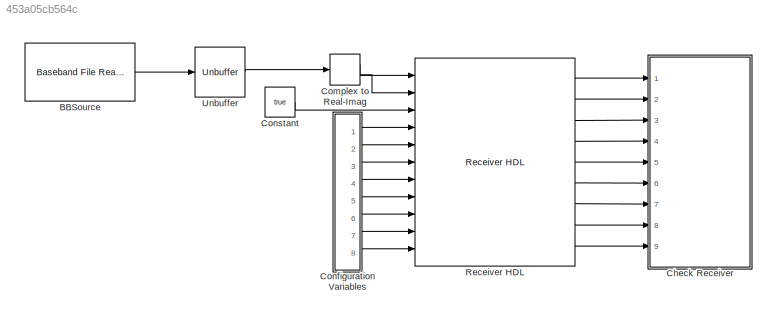
MODEL slx_453a05cb564c
KIND model
CONFIG AbsTol = auto
CONFIG EnableMultiTasking = off
CONFIG FixedStep = auto
CONFIG InitFcn = modelSettings\n
CONFIG MaxStep = auto
CONFIG MinStep = auto
CONFIG RelTol = 1e-3
CONFIG SampleTimeConstraint = Unconstrained
CONFIG Solver = FixedStepDiscrete
CONFIG SolverName = FixedStepDiscrete
CONFIG StartTime = 0.0
CONFIG StopTime = 10.0
BLOCK [Reference] BBSource  REF=commsource2/Baseband File Reader
  Ports = [0, 1]
  SourceBlock = commsource2/Baseband File Reader
  SourceProductBaseCode = CM
  SourceProductName = Communications System Toolbox
  SourceType = Baseband File Reader
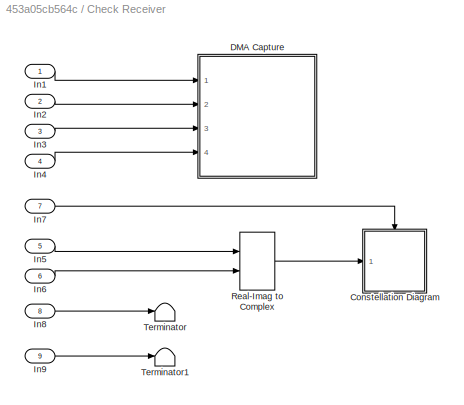
BLOCK [SubSystem] Check Receiver
  Ports = [9]
  RequestExecContextInheritance = off
  Variant = off
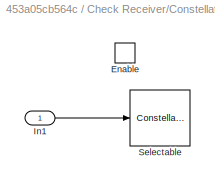
BLOCK [SubSystem] Check Receiver/Constellation Diagram
  Ports = [1, 0, 1]
  RequestExecContextInheritance = off
  Variant = off
BLOCK [EnablePort] Check Receiver/Constellation Diagram/Enable
  Ports = []
BLOCK [Inport] Check Receiver/Constellation Diagram/In1
  IconDisplay = Port number
BLOCK [ConstellationDiagram] Check Receiver/Constellation Diagram/Selectable
  Ports = [1]
  ScopeSpecificationString = comm.scopes.ConstellationDiagramBlockCfg('CurrentConfiguration', extmgr.ConfigurationSet(extmgr.Configuration('Core','General UI',true),extmgr.Configuration('Core','Source UI',true),extmgr.Configuration('Sources','WiredSimulink',true),extmgr.Configuration('Sources','File',false),extmgr.Configuration('Sources','Workspace',false),extmgr.Configuration('Sources','Streaming',false),extmgr.Configuration...<+2463ch>
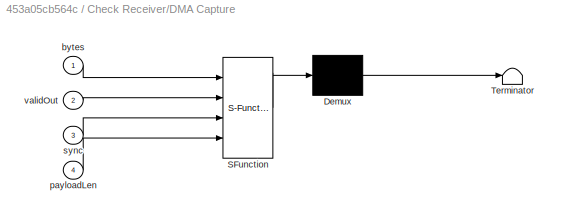
BLOCK [SubSystem] Check Receiver/DMA Capture
  ErrorFcn = Stateflow.Translate.translate
  PermitHierarchicalResolution = ExplicitOnly
  Ports = [4]
  RequestExecContextInheritance = off
  SFBlockType = MATLAB Function
  TreatAsAtomicUnit = on
  Variant = off
BLOCK [Demux] Check Receiver/DMA Capture/ Demux 
  Outputs = 1
  Ports = [1, 1]
BLOCK [S-Function] Check Receiver/DMA Capture/ SFunction 
  EnableBusSupport = on
  FunctionName = sf_sfun
  PortCounts = [4 1]
  Ports = [4, 1]
  SFcnIsStateOwnerBlock = off
  SFunctionDeploymentMode = off
  Tag = Stateflow S-Function Receiver 3
BLOCK [Terminator] Check Receiver/DMA Capture/ Terminator 
BLOCK [Inport] Check Receiver/DMA Capture/bytes
  IconDisplay = Port number
BLOCK [Inport] Check Receiver/DMA Capture/payloadLen
  IconDisplay = Port number
  Port = 4
BLOCK [Inport] Check Receiver/DMA Capture/sync
  IconDisplay = Port number
  Port = 3
BLOCK [Inport] Check Receiver/DMA Capture/validOut
  IconDisplay = Port number
  Port = 2
BLOCK [Inport] Check Receiver/In1
  IconDisplay = Port number
BLOCK [Inport] Check Receiver/In2
  IconDisplay = Port number
  Port = 2
BLOCK [Inport] Check Receiver/In3
  IconDisplay = Port number
  Port = 3
BLOCK [Inport] Check Receiver/In4
  IconDisplay = Port number
  Port = 4
BLOCK [Inport] Check Receiver/In5
  IconDisplay = Port number
  Port = 5
BLOCK [Inport] Check Receiver/In6
  IconDisplay = Port number
  Port = 6
BLOCK [Inport] Check Receiver/In7
  IconDisplay = Port number
  Port = 7
BLOCK [Inport] Check Receiver/In8
  IconDisplay = Port number
  Port = 8
BLOCK [Inport] Check Receiver/In9
  IconDisplay = Port number
  Port = 9
BLOCK [RealImagToComplex] Check Receiver/Real-Imag to Complex
  Ports = [2, 1]
BLOCK [Terminator] Check Receiver/Terminator
BLOCK [Terminator] Check Receiver/Terminator1
BLOCK [ComplexToRealImag] Complex to Real-Imag
  Ports = [1, 2]
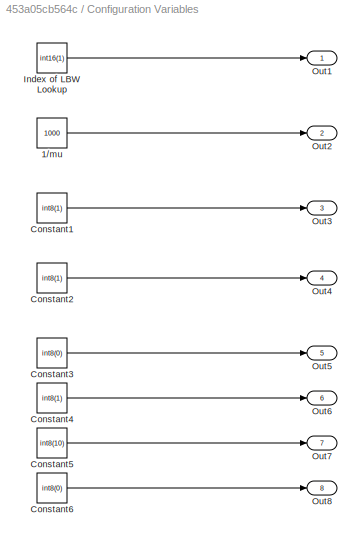
BLOCK [SubSystem] Configuration Variables
  Ports = [0, 8]
  RequestExecContextInheritance = off
  Variant = off
BLOCK [Constant] Configuration Variables/1//mu
  OutDataTypeStr = int16
  SampleTime = -1
  Value = 1000
BLOCK [Constant] Configuration Variables/Constant1
  SampleTime = 1/RadioSampleRate
  Value = int8(1)
BLOCK [Constant] Configuration Variables/Constant2
  SampleTime = 1/RadioSampleRate
  Value = int8(1)
BLOCK [Constant] Configuration Variables/Constant3
  SampleTime = 1/RadioSampleRate
  Value = int8(0)
BLOCK [Constant] Configuration Variables/Constant4
  SampleTime = 1/RadioSampleRate
  Value = int8(1)
BLOCK [Constant] Configuration Variables/Constant5
  SampleTime = 1/RadioSampleRate
  Value = int8(10)
BLOCK [Constant] Configuration Variables/Constant6
  SampleTime = 1/RadioSampleRate
  Value = int8(0)
BLOCK [Constant] Configuration Variables/Index of LBW Lookup
  SampleTime = 1/RadioSampleRate
  Value = int16(1)
BLOCK [Outport] Configuration Variables/Out1
  IconDisplay = Port number
BLOCK [Outport] Configuration Variables/Out2
  IconDisplay = Port number
  Port = 2
BLOCK [Outport] Configuration Variables/Out3
  IconDisplay = Port number
  Port = 3
BLOCK [Outport] Configuration Variables/Out4
  IconDisplay = Port number
  Port = 4
BLOCK [Outport] Configuration Variables/Out5
  IconDisplay = Port number
  Port = 5
BLOCK [Outport] Configuration Variables/Out6
  IconDisplay = Port number
  Port = 6
BLOCK [Outport] Configuration Variables/Out7
  IconDisplay = Port number
  Port = 7
BLOCK [Outport] Configuration Variables/Out8
  IconDisplay = Port number
  Port = 8
BLOCK [Constant] Constant
  SampleTime = 1/RadioSampleRate
  Value = true
BLOCK [Reference] Receiver HDL  REF=RxTxFixedPointLibrary_noscopes/Receiver HDL
  Ports = [11, 9]
  SourceBlock = RxTxFixedPointLibrary_noscopes/Receiver HDL
BLOCK [Unbuffer] Unbuffer
  Ports = [1, 1]
LINE BBSource:1 -> Unbuffer:1
LINE Check Receiver/Constellation Diagram/In1:1 -> Check Receiver/Constellation Diagram/Selectable:1
LINE Check Receiver/In1:1 -> Check Receiver/DMA Capture:1
LINE Check Receiver/In2:1 -> Check Receiver/DMA Capture:2
LINE Check Receiver/In3:1 -> Check Receiver/DMA Capture:3
LINE Check Receiver/In4:1 -> Check Receiver/DMA Capture:4
LINE Check Receiver/In5:1 -> Check Receiver/Real-Imag to Complex:1
LINE Check Receiver/In6:1 -> Check Receiver/Real-Imag to Complex:2
LINE Check Receiver/In7:1 -> Check Receiver/Constellation Diagram:enable
LINE Check Receiver/In8:1 -> Check Receiver/Terminator:1
LINE Check Receiver/In9:1 -> Check Receiver/Terminator1:1
LINE Check Receiver/Real-Imag to Complex:1 -> Check Receiver/Constellation Diagram:1
LINE Complex to Real-Imag:1 -> Receiver HDL:1
LINE Complex to Real-Imag:2 -> Receiver HDL:2
LINE Configuration Variables/1//mu:1 -> Configuration Variables/Out2:1
LINE Configuration Variables/Constant1:1 -> Configuration Variables/Out3:1
LINE Configuration Variables/Constant2:1 -> Configuration Variables/Out4:1
LINE Configuration Variables/Constant3:1 -> Configuration Variables/Out5:1
LINE Configuration Variables/Constant4:1 -> Configuration Variables/Out6:1
LINE Configuration Variables/Constant5:1 -> Configuration Variables/Out7:1
LINE Configuration Variables/Constant6:1 -> Configuration Variables/Out8:1
LINE Configuration Variables/Index of LBW Lookup:1 -> Configuration Variables/Out1:1
LINE Configuration Variables:1 -> Receiver HDL:4
LINE Configuration Variables:2 -> Receiver HDL:5
LINE Configuration Variables:3 -> Receiver HDL:6
LINE Configuration Variables:4 -> Receiver HDL:7
LINE Configuration Variables:5 -> Receiver HDL:8
LINE Configuration Variables:6 -> Receiver HDL:9
LINE Configuration Variables:7 -> Receiver HDL:10
LINE Configuration Variables:8 -> Receiver HDL:11
LINE Constant:1 -> Receiver HDL:3
LINE Receiver HDL:1 -> Check Receiver:1
LINE Receiver HDL:2 -> Check Receiver:2
LINE Receiver HDL:3 -> Check Receiver:3
LINE Receiver HDL:4 -> Check Receiver:4
LINE Receiver HDL:5 -> Check Receiver:5
LINE Receiver HDL:6 -> Check Receiver:6
LINE Receiver HDL:7 -> Check Receiver:7
LINE Receiver HDL:8 -> Check Receiver:8
LINE Receiver HDL:9 -> Check Receiver:9
LINE Unbuffer:1 -> Complex to Real-Imag:1
CHART Check Receiver/DMA Capture states=1 transitions=1
  STATE_LABEL 'eML_blk_kernel()'
  STATE_LABEL 'SCRIPT:\nfunction fcn(bytes, validOut, sync, payloadLen)\n\npersistent frameBuffer byteCounter fullPayloadBits\n\nbitsInPack = 64;\n\nif isempty(frameBuffer)\n    maxFrameBits = (2^16)*8;\n    frameBuffer = false(maxFrameBits,1);\n    byteCounter = 0;\n    fullPayloadBits = uint16(0);\nend\n\nif validOut\n    if sync\n        byteCounter = bitsInPack;\n        frameBuffer(1:byteCounter) = bitget(bytes,1:bitsInPack...<+390ch>'
